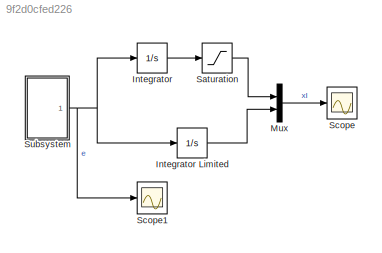
MODEL slx_9f2d0cfed226
KIND model
CONFIG AbsTol = auto
CONFIG EnableMultiTasking = on
CONFIG FixedStep = auto
CONFIG MaxStep = auto
CONFIG MinStep = auto
CONFIG RelTol = 1e-3
CONFIG SampleTimeConstraint = Unconstrained
CONFIG Solver = ode45
CONFIG SolverName = ode45
CONFIG StartTime = 0.0
CONFIG StopTime = 10.0
BLOCK [Integrator] Integrator
  Ports = [1, 1]
BLOCK [Integrator] Integrator Limited
  LimitOutput = on
  LowerSaturationLimit = integrator_lower_limit
  Ports = [1, 1]
  UpperSaturationLimit = integrator_upper_limit
BLOCK [Mux] Mux
  DisplayOption = bar
  Inputs = 2
  Ports = [2, 1]
BLOCK [Saturate] Saturation
  InputPortMap = u0
  LowerLimit = integrator_lower_limit
  Ports = [1, 1]
  UpperLimit = integrator_upper_limit
BLOCK [Scope] Scope
  Floating = off
  NumInputPorts = 1
  Ports = [1]
  ScopeSpecificationString = Simulink.scopes.TimeScopeBlockCfg('CurrentConfiguration', extmgr.ConfigurationSet(extmgr.Configuration('Core','General UI',true),extmgr.Configuration('Core','Source UI',true),extmgr.Configuration('Sources','WiredSimulink',true,'DataLoggingSaveFormat','StructureWithTime','DataLoggingLimitDataPoints',true,'DataLoggingDecimation','1','DataLoggingDecimateData',true),extmgr.Configuration('Visuals','Tim...<+1670ch>
BLOCK [Scope] Scope1
  Floating = off
  NumInputPorts = 1
  Ports = [1]
  ScopeSpecificationString = Simulink.scopes.TimeScopeBlockCfg('CurrentConfiguration', extmgr.ConfigurationSet(extmgr.Configuration('Core','General UI',true),extmgr.Configuration('Core','Source UI',true),extmgr.Configuration('Sources','WiredSimulink',true,'DataLoggingVariableName','ScopeData1','DataLoggingSaveFormat','StructureWithTime','DataLoggingLimitDataPoints',true,'DataLoggingDecimation','1','DataLoggingDecimateData',tr...<+1680ch>
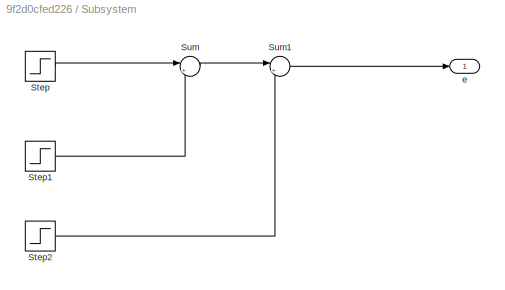
BLOCK [SubSystem] Subsystem
  Ports = [0, 1]
  RequestExecContextInheritance = off
BLOCK [Step] Subsystem/Step
  After = step_magnitude
  SampleTime = 0
  Time = step_time
BLOCK [Step] Subsystem/Step1
  After = -2*step_magnitude
  SampleTime = 0
  Time = step_time + step_duration
BLOCK [Step] Subsystem/Step2
  After = step_magnitude
  SampleTime = 0
  Time = step_time + 2*step_duration
BLOCK [Sum] Subsystem/Sum
  IconShape = round
  InputSameDT = off
  Inputs = |++
  OutDataTypeStr = Inherit: Inherit via internal rule
  Ports = [2, 1]
  SaturateOnIntegerOverflow = off
BLOCK [Sum] Subsystem/Sum1
  IconShape = round
  InputSameDT = off
  Inputs = |++
  OutDataTypeStr = Inherit: Inherit via internal rule
  Ports = [2, 1]
  SaturateOnIntegerOverflow = off
BLOCK [Outport] Subsystem/e
  IconDisplay = Port number
LINE Integrator Limited:1 -> Mux:2
LINE Integrator:1 -> Saturation:1
LINE Mux:1 -> Scope:1
LINE Saturation:1 -> Mux:1
LINE Subsystem/Step1:1 -> Subsystem/Sum:2
LINE Subsystem/Step2:1 -> Subsystem/Sum1:2
LINE Subsystem/Step:1 -> Subsystem/Sum:1
LINE Subsystem/Sum1:1 -> Subsystem/e:1
LINE Subsystem/Sum:1 -> Subsystem/Sum1:1
NET Subsystem:1 -> Integrator Limited:1, Integrator:1, Scope1:1
note: NET lines group one-source signal fan-out (src -> all destinations, sorted); 1:1 wires keep LINE
